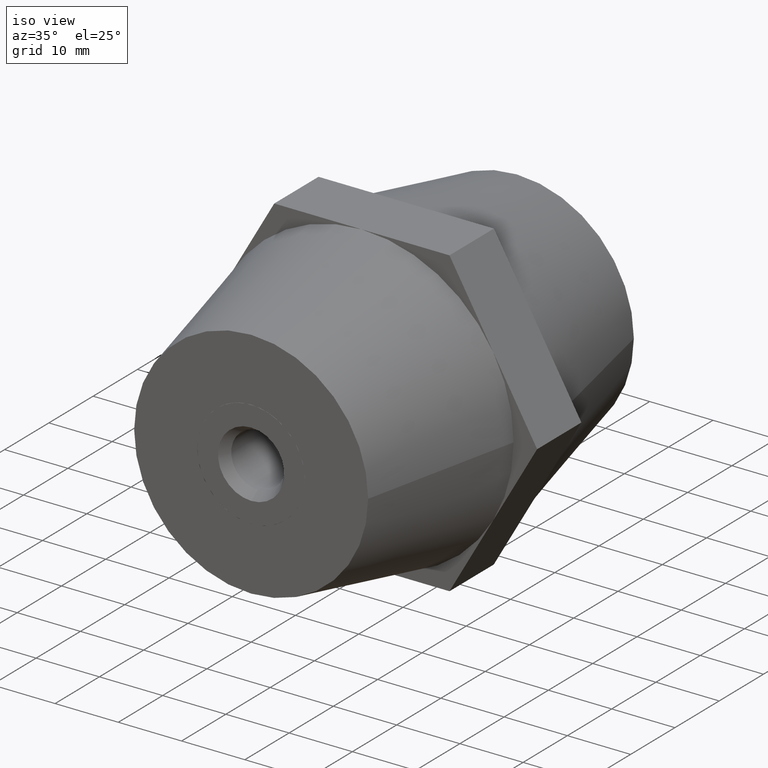
[diagram: clean part render]
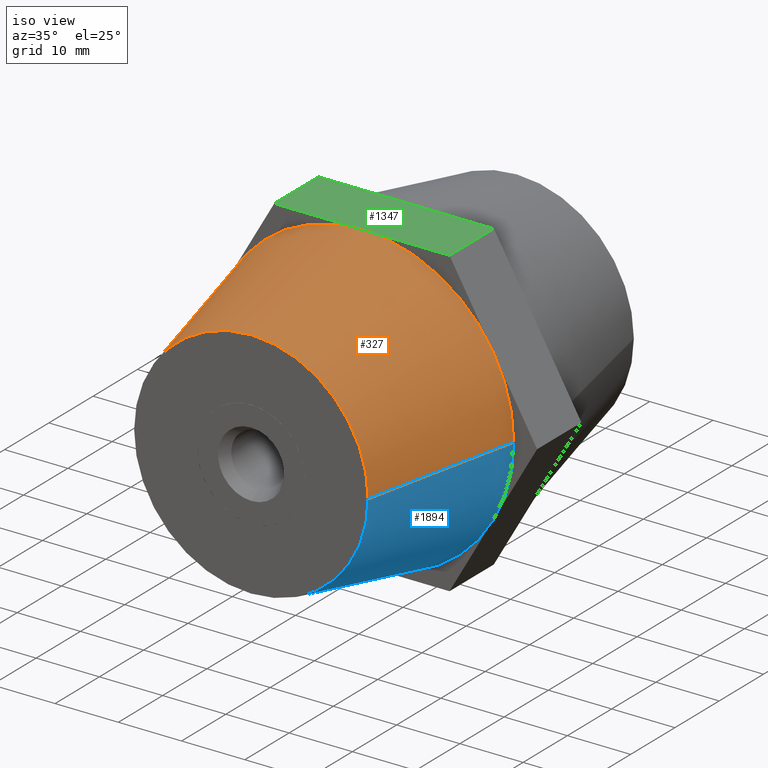
[diagram: same view with three faces highlighted in distinct colors, each labeled with its STEP entity id]
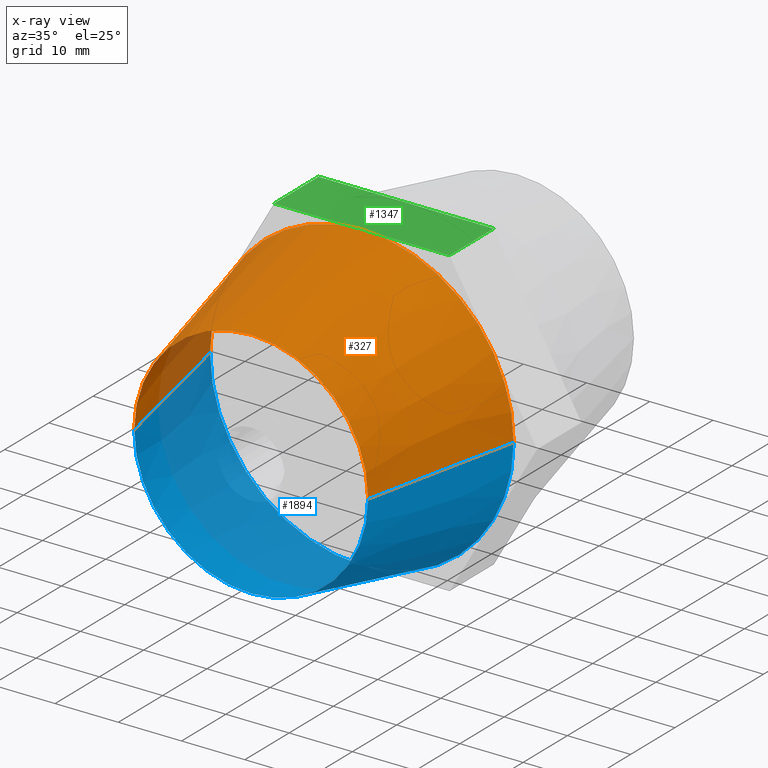
[diagram: x-ray of the same camera — body ghosted, the three highlighted faces saturated]
A machine part, iso view with three faces highlighted in distinct colors.
The next image is the same camera in x-ray (body ghosted, the three faces saturated) — at least one of them is partly hidden behind the body in this view.
Their STEP definitions:

[orange] entity #327 — the highlighted conical surface has half-angle 12.407 deg.
#99 = DIRECTION ( 'NONE',  ( -1.000000000000000000, -1.875376730785737500E-016, 0.0000000000000000000 ) ) ;
#215 = CIRCLE ( 'NONE', #2376, 24.00000000000000000 ) ;
#228 = CARTESIAN_POINT ( 'NONE',  ( -20.78460969082650000, -5.000000000000000000, 12.00000000000000000 ) ) ;
#247 = CARTESIAN_POINT ( 'NONE',  ( 4.286263797015734900E-015, -5.000000000000000000, 6.466135099498040200E-016 ) ) ;
#270 = DIRECTION ( 'NONE',  ( 0.0000000000000000000, 1.000000000000000000, 0.0000000000000000000 ) ) ;
#327 = ADVANCED_FACE ( 'NONE', ( #2589 ), #1469, .T. ) ;
#440 = VERTEX_POINT ( 'NONE', #3892 ) ;
#480 = EDGE_CURVE ( 'NONE', #2529, #2316, #1755, .T. ) ;
#485 = EDGE_CURVE ( 'NONE', #440, #2135, #854, .T. ) ;
#579 = CARTESIAN_POINT ( 'NONE',  ( 1.281634599541417800E-015, -5.000000000000000000, 24.00000000000000000 ) ) ;
#699 = DIRECTION ( 'NONE',  ( 0.0000000000000000000, 1.000000000000000000, 0.0000000000000000000 ) ) ;
#759 = VERTEX_POINT ( 'NONE', #1194 ) ;
#818 = ORIENTED_EDGE ( 'NONE', *, *, #480, .F. ) ;
#854 = LINE ( 'NONE', #1175, #2072 ) ;
#874 = ORIENTED_EDGE ( 'NONE', *, *, #2423, .F. ) ;
#903 = EDGE_CURVE ( 'NONE', #1938, #1136, #3830, .T. ) ;
#1091 = ORIENTED_EDGE ( 'NONE', *, *, #903, .F. ) ;
#1108 = EDGE_CURVE ( 'NONE', #759, #1938, #1715, .T. ) ;
#1111 = DIRECTION ( 'NONE',  ( -1.000000000000000000, -1.084202172485504400E-016, 0.0000000000000000000 ) ) ;
#1136 = VERTEX_POINT ( 'NONE', #228 ) ;
#1170 = DIRECTION ( 'NONE',  ( 0.0000000000000000000, 1.000000000000000000, 0.0000000000000000000 ) ) ;
#1175 = CARTESIAN_POINT ( 'NONE',  ( 24.00000000000000400, -4.999999999999997300, 2.939152317953647900E-015 ) ) ;
#1194 = CARTESIAN_POINT ( 'NONE',  ( -18.49999999999999300, -30.00000000000000400, 0.0000000000000000000 ) ) ;
#1310 = CARTESIAN_POINT ( 'NONE',  ( 4.286263797015734900E-015, -5.000000000000000000, 0.0000000000000000000 ) ) ;
#1316 = CIRCLE ( 'NONE', #3623, 18.50000000000000000 ) ;
#1469 = CONICAL_SURFACE ( 'NONE', #1912, 24.00000000000000000, 0.2165503049760894300 ) ;
#1551 = CARTESIAN_POINT ( 'NONE',  ( 24.00000000000000400, -5.000000000000000000, 2.939152317953647900E-015 ) ) ;
#1646 = CARTESIAN_POINT ( 'NONE',  ( 4.286263797015734900E-015, -5.000000000000000000, 6.466135099498040200E-016 ) ) ;
#1715 = LINE ( 'NONE', #2648, #2327 ) ;
#1747 = DIRECTION ( 'NONE',  ( 0.0000000000000000000, 0.0000000000000000000, 1.000000000000000000 ) ) ;
#1753 = ORIENTED_EDGE ( 'NONE', *, *, #2677, .F. ) ;
#1755 = CIRCLE ( 'NONE', #2561, 24.00000000000000000 ) ;
#1912 = AXIS2_PLACEMENT_3D ( 'NONE', #3853, #3863, #1111 ) ;
#1929 = DIRECTION ( 'NONE',  ( 0.0000000000000000000, 0.0000000000000000000, 1.000000000000000000 ) ) ;
#1938 = VERTEX_POINT ( 'NONE', #2488 ) ;
#2072 = VECTOR ( 'NONE', #3937, 1000.000000000000000 ) ;
#2079 = AXIS2_PLACEMENT_3D ( 'NONE', #1310, #2547, #2277 ) ;
#2107 = EDGE_CURVE ( 'NONE', #759, #440, #1316, .T. ) ;
#2128 = DIRECTION ( 'NONE',  ( 0.0000000000000000000, 0.0000000000000000000, 1.000000000000000000 ) ) ;
#2135 = VERTEX_POINT ( 'NONE', #1551 ) ;
#2277 = DIRECTION ( 'NONE',  ( -1.000000000000000000, -1.084202172485504400E-016, 0.0000000000000000000 ) ) ;
#2316 = VERTEX_POINT ( 'NONE', #2452 ) ;
#2327 = VECTOR ( 'NONE', #3883, 1000.000000000000100 ) ;
#2376 = AXIS2_PLACEMENT_3D ( 'NONE', #247, #1170, #2128 ) ;
#2423 = EDGE_CURVE ( 'NONE', #2316, #2135, #215, .T. ) ;
#2428 = ORIENTED_EDGE ( 'NONE', *, *, #485, .T. ) ;
#2452 = CARTESIAN_POINT ( 'NONE',  ( 20.78460969082655300, -5.000000000000000000, 12.00000000000000000 ) ) ;
#2488 = CARTESIAN_POINT ( 'NONE',  ( -23.99999999999999600, -5.000000000000000000, 0.0000000000000000000 ) ) ;
#2529 = VERTEX_POINT ( 'NONE', #579 ) ;
#2547 = DIRECTION ( 'NONE',  ( -1.224646799147352000E-016, 1.000000000000000000, 0.0000000000000000000 ) ) ;
#2561 = AXIS2_PLACEMENT_3D ( 'NONE', #3597, #270, #1747 ) ;
#2589 = FACE_OUTER_BOUND ( 'NONE', #2822, .T. ) ;
#2648 = CARTESIAN_POINT ( 'NONE',  ( -23.99999999999999600, -5.000000000000002700, 0.0000000000000000000 ) ) ;
#2677 = EDGE_CURVE ( 'NONE', #1136, #2529, #3444, .T. ) ;
#2822 = EDGE_LOOP ( 'NONE', ( #3165, #2428, #874, #818, #1753, #1091, #3873 ) ) ;
#3087 = CARTESIAN_POINT ( 'NONE',  ( 7.347880794884119900E-015, -30.00000000000000000, 0.0000000000000000000 ) ) ;
#3165 = ORIENTED_EDGE ( 'NONE', *, *, #2107, .T. ) ;
#3367 = AXIS2_PLACEMENT_3D ( 'NONE', #1646, #699, #1929 ) ;
#3444 = CIRCLE ( 'NONE', #2079, 24.00000000000000000 ) ;
#3461 = DIRECTION ( 'NONE',  ( -1.224646799147352000E-016, 1.000000000000000000, 0.0000000000000000000 ) ) ;
#3597 = CARTESIAN_POINT ( 'NONE',  ( 4.286263797015734900E-015, -5.000000000000000000, 6.466135099498040200E-016 ) ) ;
#3623 = AXIS2_PLACEMENT_3D ( 'NONE', #3087, #3461, #99 ) ;
#3830 = CIRCLE ( 'NONE', #3367, 24.00000000000000000 ) ;
#3853 = CARTESIAN_POINT ( 'NONE',  ( 4.286263797015734900E-015, -5.000000000000000000, 0.0000000000000000000 ) ) ;
#3863 = DIRECTION ( 'NONE',  ( -1.224646799147352000E-016, 1.000000000000000000, 0.0000000000000000000 ) ) ;
#3873 = ORIENTED_EDGE ( 'NONE', *, *, #1108, .F. ) ;
#3883 = DIRECTION ( 'NONE',  ( -0.2148617826751201000, 0.9766444667050898600, 0.0000000000000000000 ) ) ;
#3892 = CARTESIAN_POINT ( 'NONE',  ( 18.50000000000000700, -29.99999999999999600, 2.602374448188125800E-015 ) ) ;
#3937 = DIRECTION ( 'NONE',  ( 0.2148617826751198800, 0.9766444667050899800, 2.631297944121799100E-017 ) ) ;

[blue] entity #1894 — the highlighted conical surface has half-angle 12.407 deg.
#10 = AXIS2_PLACEMENT_3D ( 'NONE', #3658, #2092, #3920 ) ;
#224 = EDGE_CURVE ( 'NONE', #2135, #1225, #1577, .T. ) ;
#319 = DIRECTION ( 'NONE',  ( 0.0000000000000000000, 0.0000000000000000000, 1.000000000000000000 ) ) ;
#347 = AXIS2_PLACEMENT_3D ( 'NONE', #1473, #590, #3970 ) ;
#421 = AXIS2_PLACEMENT_3D ( 'NONE', #3440, #990, #2211 ) ;
#436 = DIRECTION ( 'NONE',  ( 0.0000000000000000000, 1.000000000000000000, 0.0000000000000000000 ) ) ;
#440 = VERTEX_POINT ( 'NONE', #3892 ) ;
#475 = CONICAL_SURFACE ( 'NONE', #1483, 24.00000000000000000, 0.2165503049760894300 ) ;
#485 = EDGE_CURVE ( 'NONE', #440, #2135, #854, .T. ) ;
#590 = DIRECTION ( 'NONE',  ( 0.0000000000000000000, 1.000000000000000000, 0.0000000000000000000 ) ) ;
#641 = CARTESIAN_POINT ( 'NONE',  ( -20.78460969082655300, -5.000000000000000000, -12.00000000000000000 ) ) ;
#736 = EDGE_CURVE ( 'NONE', #2324, #1938, #2373, .T. ) ;
#759 = VERTEX_POINT ( 'NONE', #1194 ) ;
#763 = EDGE_CURVE ( 'NONE', #3686, #2324, #1423, .T. ) ;
#806 = CARTESIAN_POINT ( 'NONE',  ( 4.286263797015734900E-015, -5.000000000000000000, 0.0000000000000000000 ) ) ;
#842 = CIRCLE ( 'NONE', #2038, 24.00000000000000000 ) ;
#854 = LINE ( 'NONE', #1175, #2072 ) ;
#990 = DIRECTION ( 'NONE',  ( -1.224646799147352000E-016, 1.000000000000000000, 0.0000000000000000000 ) ) ;
#1108 = EDGE_CURVE ( 'NONE', #759, #1938, #1715, .T. ) ;
#1175 = CARTESIAN_POINT ( 'NONE',  ( 24.00000000000000400, -4.999999999999997300, 2.939152317953647900E-015 ) ) ;
#1194 = CARTESIAN_POINT ( 'NONE',  ( -18.49999999999999300, -30.00000000000000400, 0.0000000000000000000 ) ) ;
#1208 = CIRCLE ( 'NONE', #421, 18.50000000000000000 ) ;
#1225 = VERTEX_POINT ( 'NONE', #2356 ) ;
#1237 = AXIS2_PLACEMENT_3D ( 'NONE', #1342, #436, #2295 ) ;
#1342 = CARTESIAN_POINT ( 'NONE',  ( 4.286263797015734900E-015, -5.000000000000000000, 6.466135099498040200E-016 ) ) ;
#1343 = ORIENTED_EDGE ( 'NONE', *, *, #3390, .F. ) ;
#1423 = CIRCLE ( 'NONE', #10, 24.00000000000000000 ) ;
#1452 = ORIENTED_EDGE ( 'NONE', *, *, #3599, .T. ) ;
#1473 = CARTESIAN_POINT ( 'NONE',  ( 4.286263797015734900E-015, -5.000000000000000000, 6.466135099498040200E-016 ) ) ;
#1483 = AXIS2_PLACEMENT_3D ( 'NONE', #806, #2932, #3864 ) ;
#1551 = CARTESIAN_POINT ( 'NONE',  ( 24.00000000000000400, -5.000000000000000000, 2.939152317953647900E-015 ) ) ;
#1577 = CIRCLE ( 'NONE', #1237, 24.00000000000000000 ) ;
#1715 = LINE ( 'NONE', #2648, #2327 ) ;
#1894 = ADVANCED_FACE ( 'NONE', ( #3693 ), #475, .T. ) ;
#1938 = VERTEX_POINT ( 'NONE', #2488 ) ;
#2027 = EDGE_LOOP ( 'NONE', ( #2705, #1452, #2960, #3796, #3596, #1343, #2820 ) ) ;
#2038 = AXIS2_PLACEMENT_3D ( 'NONE', #3358, #3041, #319 ) ;
#2072 = VECTOR ( 'NONE', #3937, 1000.000000000000000 ) ;
#2092 = DIRECTION ( 'NONE',  ( 0.0000000000000000000, 1.000000000000000000, 0.0000000000000000000 ) ) ;
#2135 = VERTEX_POINT ( 'NONE', #1551 ) ;
#2211 = DIRECTION ( 'NONE',  ( -1.000000000000000000, -1.875376730785737500E-016, 0.0000000000000000000 ) ) ;
#2295 = DIRECTION ( 'NONE',  ( 0.0000000000000000000, 0.0000000000000000000, 1.000000000000000000 ) ) ;
#2324 = VERTEX_POINT ( 'NONE', #641 ) ;
#2327 = VECTOR ( 'NONE', #3883, 1000.000000000000100 ) ;
#2356 = CARTESIAN_POINT ( 'NONE',  ( 20.78460969082655300, -5.000000000000000000, -12.00000000000000000 ) ) ;
#2373 = CIRCLE ( 'NONE', #347, 24.00000000000000000 ) ;
#2488 = CARTESIAN_POINT ( 'NONE',  ( -23.99999999999999600, -5.000000000000000000, 0.0000000000000000000 ) ) ;
#2648 = CARTESIAN_POINT ( 'NONE',  ( -23.99999999999999600, -5.000000000000002700, 0.0000000000000000000 ) ) ;
#2705 = ORIENTED_EDGE ( 'NONE', *, *, #485, .F. ) ;
#2820 = ORIENTED_EDGE ( 'NONE', *, *, #224, .F. ) ;
#2932 = DIRECTION ( 'NONE',  ( -1.224646799147352000E-016, 1.000000000000000000, 0.0000000000000000000 ) ) ;
#2960 = ORIENTED_EDGE ( 'NONE', *, *, #1108, .T. ) ;
#3041 = DIRECTION ( 'NONE',  ( 0.0000000000000000000, 1.000000000000000000, 0.0000000000000000000 ) ) ;
#3358 = CARTESIAN_POINT ( 'NONE',  ( 4.286263797015734900E-015, -5.000000000000000000, 6.466135099498040200E-016 ) ) ;
#3390 = EDGE_CURVE ( 'NONE', #1225, #3686, #842, .T. ) ;
#3440 = CARTESIAN_POINT ( 'NONE',  ( 7.347880794884119900E-015, -30.00000000000000000, 0.0000000000000000000 ) ) ;
#3522 = CARTESIAN_POINT ( 'NONE',  ( 4.286263797015739700E-015, -5.000000000000000000, -24.00000000000000000 ) ) ;
#3596 = ORIENTED_EDGE ( 'NONE', *, *, #763, .F. ) ;
#3599 = EDGE_CURVE ( 'NONE', #440, #759, #1208, .T. ) ;
#3658 = CARTESIAN_POINT ( 'NONE',  ( 4.286263797015734900E-015, -5.000000000000000000, 6.466135099498040200E-016 ) ) ;
#3686 = VERTEX_POINT ( 'NONE', #3522 ) ;
#3693 = FACE_OUTER_BOUND ( 'NONE', #2027, .T. ) ;
#3796 = ORIENTED_EDGE ( 'NONE', *, *, #736, .F. ) ;
#3864 = DIRECTION ( 'NONE',  ( -1.000000000000000000, -1.084202172485504400E-016, 0.0000000000000000000 ) ) ;
#3883 = DIRECTION ( 'NONE',  ( -0.2148617826751201000, 0.9766444667050898600, 0.0000000000000000000 ) ) ;
#3892 = CARTESIAN_POINT ( 'NONE',  ( 18.50000000000000700, -29.99999999999999600, 2.602374448188125800E-015 ) ) ;
#3920 = DIRECTION ( 'NONE',  ( 0.0000000000000000000, 0.0000000000000000000, 1.000000000000000000 ) ) ;
#3937 = DIRECTION ( 'NONE',  ( 0.2148617826751198800, 0.9766444667050899800, 2.631297944121799100E-017 ) ) ;
#3970 = DIRECTION ( 'NONE',  ( 0.0000000000000000000, 0.0000000000000000000, 1.000000000000000000 ) ) ;

[green] entity #1347 — the highlighted planar face has unit normal (0, 0, -1).
#125 = DIRECTION ( 'NONE',  ( 1.000000000000000000, 0.0000000000000000000, 1.251928832280965700E-016 ) ) ;
#161 = ORIENTED_EDGE ( 'NONE', *, *, #1064, .T. ) ;
#293 = PLANE ( 'NONE',  #1420 ) ;
#376 = CARTESIAN_POINT ( 'NONE',  ( -13.85640646055101900, -5.000000000000000000, 24.00000000000000000 ) ) ;
#572 = ORIENTED_EDGE ( 'NONE', *, *, #3574, .T. ) ;
#579 = CARTESIAN_POINT ( 'NONE',  ( 1.281634599541417800E-015, -5.000000000000000000, 24.00000000000000000 ) ) ;
#581 = CARTESIAN_POINT ( 'NONE',  ( -13.85640646055101900, 5.000000000000000000, 24.00000000000000000 ) ) ;
#643 = LINE ( 'NONE', #2566, #2651 ) ;
#782 = ORIENTED_EDGE ( 'NONE', *, *, #2039, .T. ) ;
#817 = CARTESIAN_POINT ( 'NONE',  ( 13.85640646055101900, 5.000000000000000000, 24.00000000000000000 ) ) ;
#1044 = LINE ( 'NONE', #581, #2575 ) ;
#1064 = EDGE_CURVE ( 'NONE', #1306, #3259, #1332, .T. ) ;
#1072 = VERTEX_POINT ( 'NONE', #3819 ) ;
#1089 = LINE ( 'NONE', #3037, #3068 ) ;
#1186 = EDGE_CURVE ( 'NONE', #1072, #1191, #3585, .T. ) ;
#1191 = VERTEX_POINT ( 'NONE', #2650 ) ;
#1306 = VERTEX_POINT ( 'NONE', #2998 ) ;
#1332 = LINE ( 'NONE', #3191, #2659 ) ;
#1347 = ADVANCED_FACE ( 'NONE', ( #3953 ), #293, .F. ) ;
#1356 = DIRECTION ( 'NONE',  ( 0.0000000000000000000, -1.000000000000000000, 0.0000000000000000000 ) ) ;
#1420 = AXIS2_PLACEMENT_3D ( 'NONE', #1480, #2094, #1826 ) ;
#1480 = CARTESIAN_POINT ( 'NONE',  ( -13.85640646055101900, 5.000000000000000000, 24.00000000000000000 ) ) ;
#1545 = DIRECTION ( 'NONE',  ( 1.000000000000000000, 0.0000000000000000000, 1.251928832280965700E-016 ) ) ;
#1826 = DIRECTION ( 'NONE',  ( -1.000000000000000000, 0.0000000000000000000, -1.251928832280965700E-016 ) ) ;
#1838 = DIRECTION ( 'NONE',  ( 1.000000000000000000, 0.0000000000000000000, 1.251928832280965700E-016 ) ) ;
#1882 = CARTESIAN_POINT ( 'NONE',  ( -3.004629197474319600E-015, 5.000000000000000000, 24.00000000000000000 ) ) ;
#1999 = ORIENTED_EDGE ( 'NONE', *, *, #3180, .F. ) ;
#2036 = CARTESIAN_POINT ( 'NONE',  ( -13.85640646055101900, 5.000000000000000000, 24.00000000000000000 ) ) ;
#2039 = EDGE_CURVE ( 'NONE', #2529, #1191, #1089, .T. ) ;
#2094 = DIRECTION ( 'NONE',  ( 1.251928832280965700E-016, 0.0000000000000000000, -1.000000000000000000 ) ) ;
#2098 = EDGE_CURVE ( 'NONE', #2596, #1072, #3230, .T. ) ;
#2370 = DIRECTION ( 'NONE',  ( 1.000000000000000000, 0.0000000000000000000, 1.251928832280965700E-016 ) ) ;
#2529 = VERTEX_POINT ( 'NONE', #579 ) ;
#2566 = CARTESIAN_POINT ( 'NONE',  ( -13.85640646055101900, -5.000000000000000000, 24.00000000000000000 ) ) ;
#2575 = VECTOR ( 'NONE', #1838, 1000.000000000000000 ) ;
#2596 = VERTEX_POINT ( 'NONE', #1882 ) ;
#2650 = CARTESIAN_POINT ( 'NONE',  ( 13.85640646055101900, -5.000000000000000000, 24.00000000000000000 ) ) ;
#2651 = VECTOR ( 'NONE', #125, 1000.000000000000000 ) ;
#2659 = VECTOR ( 'NONE', #1356, 1000.000000000000000 ) ;
#2678 = DIRECTION ( 'NONE',  ( 0.0000000000000000000, -1.000000000000000000, 0.0000000000000000000 ) ) ;
#2892 = ORIENTED_EDGE ( 'NONE', *, *, #1186, .F. ) ;
#2998 = CARTESIAN_POINT ( 'NONE',  ( -13.85640646055101900, 5.000000000000000000, 24.00000000000000000 ) ) ;
#3037 = CARTESIAN_POINT ( 'NONE',  ( -13.85640646055101900, -5.000000000000000000, 24.00000000000000000 ) ) ;
#3068 = VECTOR ( 'NONE', #1545, 1000.000000000000000 ) ;
#3180 = EDGE_CURVE ( 'NONE', #1306, #2596, #1044, .T. ) ;
#3191 = CARTESIAN_POINT ( 'NONE',  ( -13.85640646055101900, 5.000000000000000000, 24.00000000000000000 ) ) ;
#3200 = ORIENTED_EDGE ( 'NONE', *, *, #2098, .F. ) ;
#3230 = LINE ( 'NONE', #2036, #3370 ) ;
#3259 = VERTEX_POINT ( 'NONE', #376 ) ;
#3370 = VECTOR ( 'NONE', #2370, 1000.000000000000000 ) ;
#3380 = EDGE_LOOP ( 'NONE', ( #572, #782, #2892, #3200, #1999, #161 ) ) ;
#3574 = EDGE_CURVE ( 'NONE', #3259, #2529, #643, .T. ) ;
#3585 = LINE ( 'NONE', #817, #3878 ) ;
#3819 = CARTESIAN_POINT ( 'NONE',  ( 13.85640646055101900, 5.000000000000000000, 24.00000000000000000 ) ) ;
#3878 = VECTOR ( 'NONE', #2678, 1000.000000000000000 ) ;
#3953 = FACE_OUTER_BOUND ( 'NONE', #3380, .T. ) ;